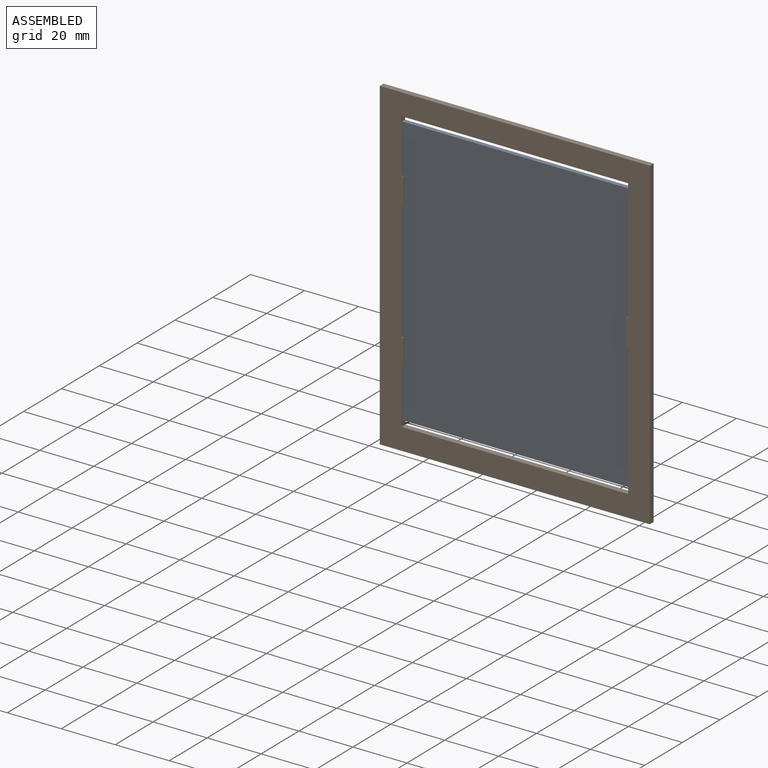
[diagram: assembled view]
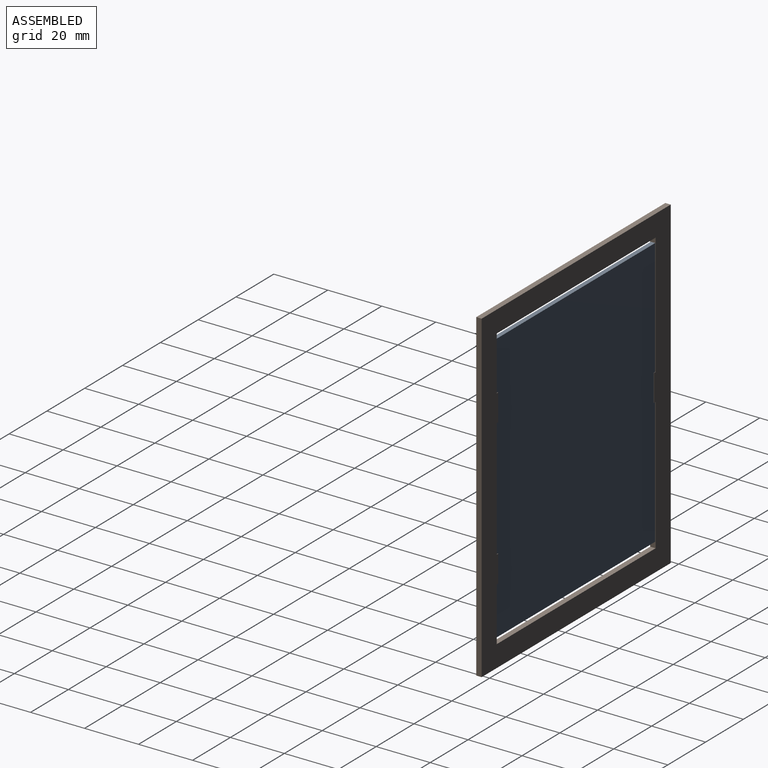
[diagram: assembled view, second angle]
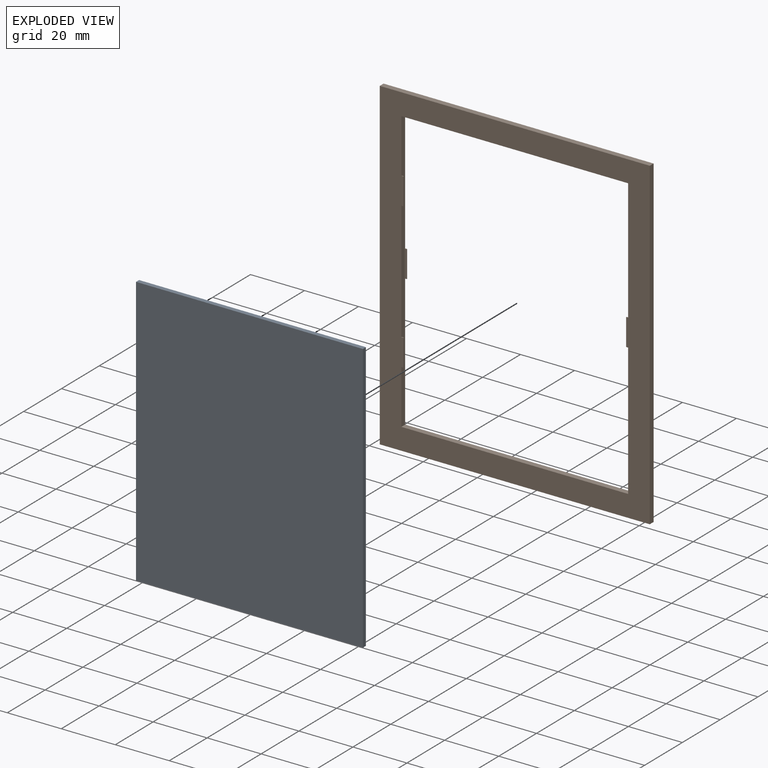
[diagram: exploded view]
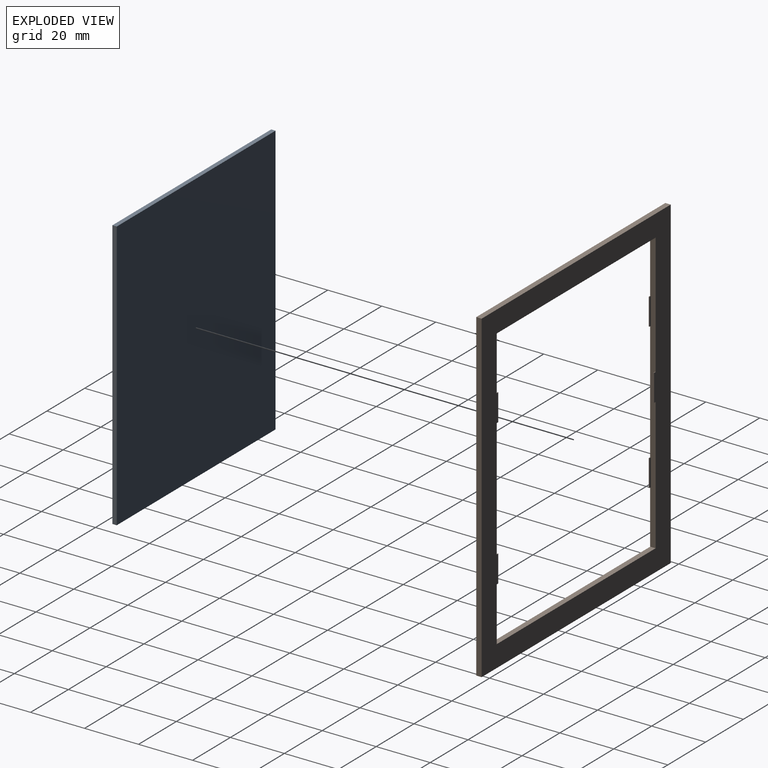
[diagram: exploded view, second angle]
ASSEMBLY  parts=2 mates=2
PART A: 6 faces, bbox 84x1.6x100 mm
  f0: plane 100x1.6mm, normal (1,0,0), area 160mm2, adj f1,f3,f4,f5
  f1: plane 84x1.6mm, normal (0,0,1), area 134.4mm2, adj f0,f2,f4,f5
  f2: plane 100x1.6mm, normal (-1,0,0), area 160mm2, adj f1,f3,f4,f5
  f3: plane 84x1.6mm, normal (0,0,-1), area 134.4mm2, adj f0,f2,f4,f5
  f4: plane 100x84mm, normal (0,-1,0), area 8400mm2, adj f0,f1,f2,f3
  f5: plane 100x84mm, normal (0,1,0), area 8400mm2, adj f0,f1,f2,f3
PART B: 34 faces, bbox 100x2x120 mm
  f0: plane 104x2mm, normal (-1,0,0), area 200.5mm2, adj f2,f7,f8,f9,f22,f23,f24,f26
  f1: plane 104x2mm, normal (1,0,0), area 200.5mm2, adj f2,f7,f8,f9,f10,f11,f12,f14
  f2: plane 84x2mm, normal (0,0,-1), area 168mm2, adj f0,f1,f8,f9
  f3: plane 100x2mm, normal (0,0,1), area 200mm2, adj f4,f6,f8,f9
  f4: plane 120x2mm, normal (-1,0,0), area 240mm2, adj f3,f5,f8,f9
  f5: plane 100x2mm, normal (0,0,-1), area 200mm2, adj f4,f6,f8,f9
  f6: plane 120x2mm, normal (1,0,0), area 240mm2, adj f3,f5,f8,f9
  f7: plane 84x2mm, normal (0,0,1), area 168mm2, adj f0,f1,f8,f9
  f8: plane 120x100mm, normal (0,-1,0), area 3286.5mm2, adj f0,f1,f2,f3,f4,f5,f6,f7
  f9: plane 120x100mm, normal (0,1,0), area 3286.5mm2, adj f0,f1,f2,f3,f4,f5,f6,f7
  f10: plane 0.75x0.25mm, normal (0,0,1), area 0.2mm2, adj f1,f8,f12,f13
  f11: plane 0.75x0.25mm, normal (0,0,-1), area 0.2mm2, adj f1,f8,f12,f13
  f12: plane 10x0.75mm, normal (0,1,0), area 7.5mm2, adj f1,f10,f11,f13
  f13: plane 10x0.25mm, normal (1,0,0), area 2.5mm2, adj f8,f10,f11,f12
  f14: plane 0.75x0.25mm, normal (0,0,1), area 0.2mm2, adj f1,f8,f16,f17
  f15: plane 0.75x0.25mm, normal (0,0,-1), area 0.2mm2, adj f1,f8,f16,f17
  f16: plane 10x0.75mm, normal (0,1,0), area 7.5mm2, adj f1,f14,f15,f17
  f17: plane 10x0.25mm, normal (1,0,0), area 2.5mm2, adj f8,f14,f15,f16
  f18: plane 0.75x0.25mm, normal (0,0,-1), area 0.2mm2, adj f1,f9,f20,f21
  f19: plane 0.75x0.25mm, normal (0,0,1), area 0.2mm2, adj f1,f9,f20,f21
  f20: plane 10x0.75mm, normal (0,-1,0), area 7.5mm2, adj f1,f18,f19,f21
  f21: plane 10x0.25mm, normal (1,0,0), area 2.5mm2, adj f9,f18,f19,f20
  f22: plane 0.75x0.25mm, normal (0,0,1), area 0.2mm2, adj f0,f9,f24,f25
  f23: plane 0.75x0.25mm, normal (0,0,-1), area 0.2mm2, adj f0,f9,f24,f25
  f24: plane 10x0.75mm, normal (0,-1,0), area 7.5mm2, adj f0,f22,f23,f25
  f25: plane 10x0.25mm, normal (-1,0,0), area 2.5mm2, adj f9,f22,f23,f24
  f26: plane 0.75x0.25mm, normal (0,0,1), area 0.2mm2, adj f0,f9,f28,f29
  f27: plane 0.75x0.25mm, normal (0,0,-1), area 0.2mm2, adj f0,f9,f28,f29
  f28: plane 10x0.75mm, normal (0,-1,0), area 7.5mm2, adj f0,f26,f27,f29
  f29: plane 10x0.25mm, normal (-1,0,0), area 2.5mm2, adj f9,f26,f27,f28
  f30: plane 0.75x0.25mm, normal (0,0,-1), area 0.2mm2, adj f0,f8,f32,f33
  f31: plane 0.75x0.25mm, normal (0,0,1), area 0.2mm2, adj f0,f8,f32,f33
  f32: plane 10x0.75mm, normal (0,1,0), area 7.5mm2, adj f0,f30,f31,f33
  f33: plane 10x0.25mm, normal (-1,0,0), area 2.5mm2, adj f8,f30,f31,f32
PLACE A t=(54.95,-0.42,60.15)mm
PLACE B t=(4.95,-0.47,0)mm
MATE planar A.f4 <-> B.f32  axis (0,-1,0) through (54.95,-1.22,60.15)mm
MATE planar A.f0 <-> B.f0  axis (1,0,0) through (96.95,-0.42,60.15)mm
